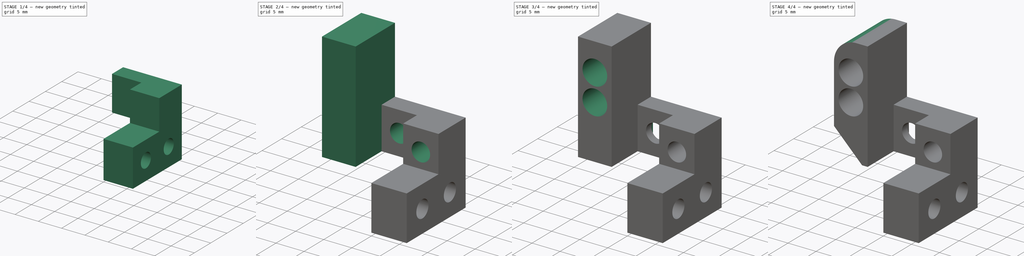
[diagram: build sequence overview — one tinted view per stage of 4, left to right]
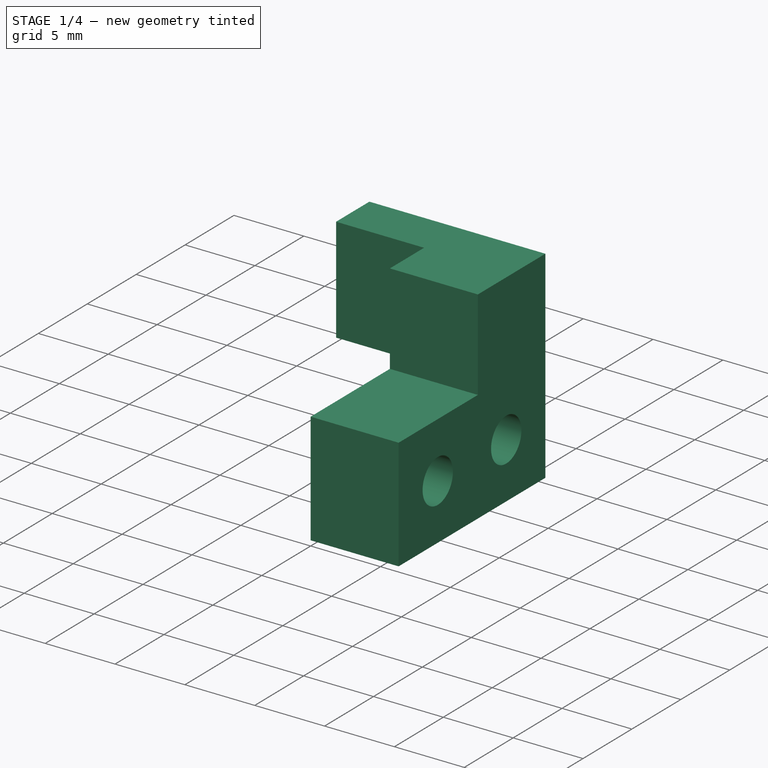
[diagram: stage 1 of 4 — iso view after this stage's code; geometry added in this stage tinted green]
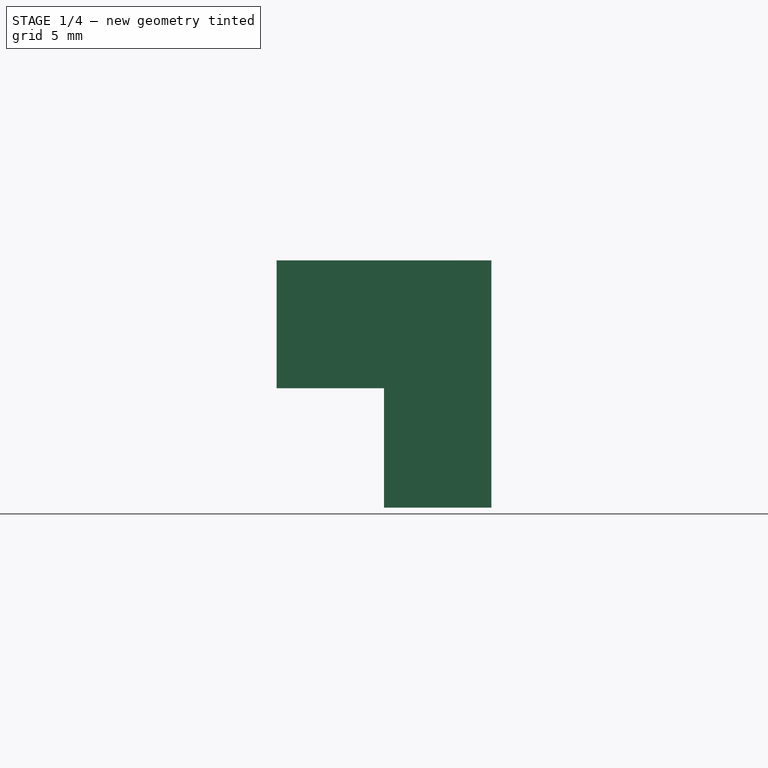
[diagram: stage 1 of 4 — front view after this stage's code; geometry added in this stage tinted green]
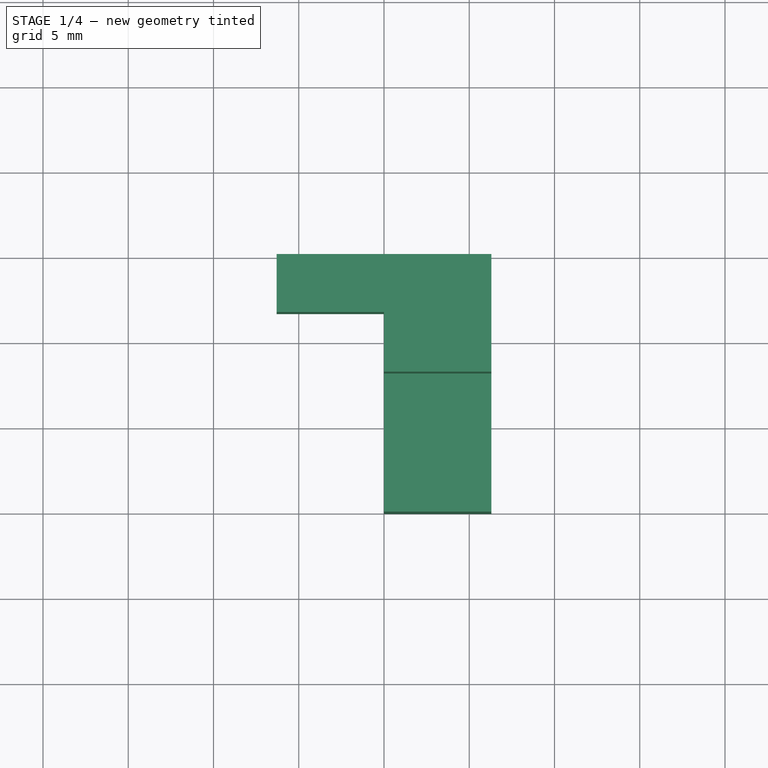
[diagram: stage 1 of 4 — top view after this stage's code; geometry added in this stage tinted green]
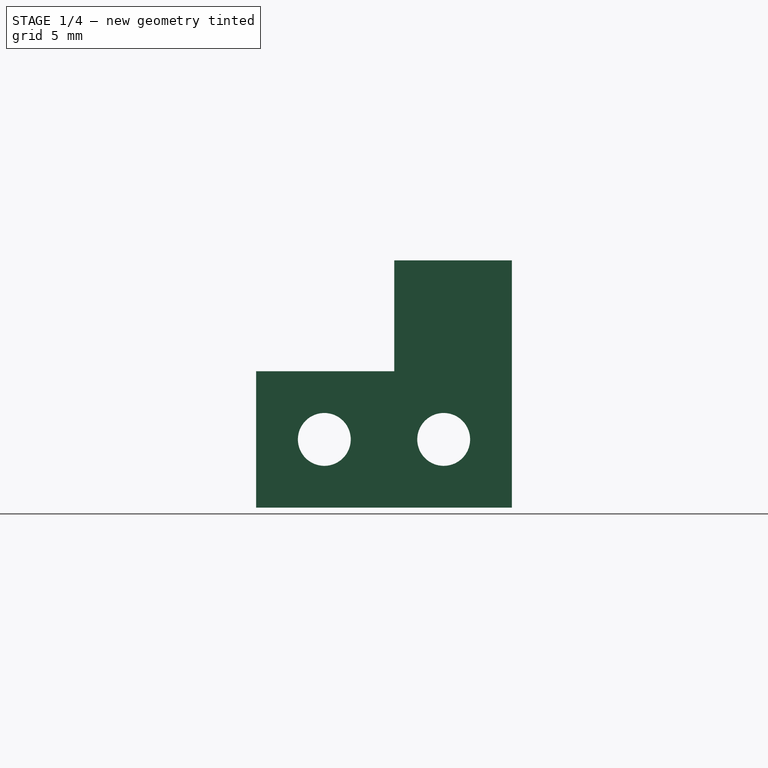
[diagram: stage 1 of 4 — right view after this stage's code; geometry added in this stage tinted green]
FCSTD DOCUMENT  (FreeCAD 0.19R24291 (Git))
Label: ri_sensor-support01
License: All rights reserved
LicenseURL: http://en.wikipedia.org/wiki/All_rights_reserved
objects: Sketcher::SketchObject×8, PartDesign::Pocket×5, PartDesign::Pad×3, PartDesign::Fillet×1, PartDesign::Chamfer×1, PartDesign::Body×1, App::Part×1
note: 29 computed .brp shape members not serialized (recipe doc carries the construction recipe); baked Part::Feature solids carry a one-line shape summary decoded from their .brp

FEATURE [Sketcher::SketchObject] Sketch  label="Baseplate-Sensor1"
  FullyConstrained = true
  MapMode = 5
  Placement = pos=(0,0,0) rot=(0.57735,0.57735,0.57735;2.0944rad)
  Support = -> [YZ_Plane001]
  expr: Constraints[12] = 10 - 3.1
  sketch-geometry (11):
    g0: LineSegment StartX=-6.9 StartY=-4.5 StartZ=0 EndX=0 EndY=-4.5 EndZ=0
    g1: LineSegment StartX=0 StartY=-4.5 StartZ=0 EndX=0 EndY=-19 EndZ=0
    g2: LineSegment StartX=0 StartY=-19 StartZ=0 EndX=-15 EndY=-19 EndZ=0
    g3: LineSegment StartX=-15 StartY=-19 StartZ=0 EndX=-15 EndY=-11 EndZ=0
    g4: LineSegment StartX=-15 StartY=-11 StartZ=0 EndX=-6.9 EndY=-11 EndZ=0
    g5: LineSegment StartX=-6.9 StartY=-11 StartZ=0 EndX=-6.9 EndY=-4.5 EndZ=0
    g6: Circle CenterX=-11 CenterY=-15 CenterZ=0 NormalX=0 NormalY=0 NormalZ=1 AngleXU=0 Radius=1.55
    g7: Circle CenterX=-4 CenterY=-15 CenterZ=0 NormalX=0 NormalY=0 NormalZ=1 AngleXU=0 Radius=1.55
    g8: GeomPoint X=-7.5 Y=-15 Z=0
    g9: GeomPoint X=-15 Y=-15 Z=0
    g10: GeomPoint X=-7.5 Y=-19 Z=0
  constraints (27):
    c: Horizontal(g0)
    c: Coincident(g0,g1)
    c: Vertical(g1)
    c: Coincident(g1,g2)
    c: Horizontal(g2)
    c: Coincident(g2,g3)
    c: Vertical(g3)
    c: Coincident(g3,g4)
    c: Coincident(g4,g5)
    c: Coincident(g5,g0)
    c: Vertical(g5)
    c: Horizontal(g4)
    c: DistanceX(g0,g0) = 6.9
    c: DistanceX(g2,g2) = 15
    c: DistanceY(g5,g5) = 6.5
    c: DistanceY(g3,g3) = 8
    c: Equal(g6,g7)
    c: Diameter(g7) = 3.1
    c: DistanceX(g6,g7) = 7
    c: Symmetric(g6,g7,g8)
    c: Symmetric(g3,g2,g9)
    c: Symmetric(g2,g1,g10)
    c: Horizontal(g6,g7)
    c: Horizontal(g8,g9)
    c: Vertical(g8,g10)
    c: DistanceY(g8,g-1) = 15
    c: Vertical(g0,g-1)
FEATURE [PartDesign::Pad] Pad
  Direction = (1,1,1)
  Length = 6.3
  Length2 = 100
  Placement = pos=(0,0,0) rot=(0.57735,0.57735,0.57735;2.0944rad)
  Profile = -> Sketch
  Refine = true
  Type = 0
FEATURE [Sketcher::SketchObject] Sketch001  label="Sensor2"
  ExternalGeometry = -> [Pad]
  FullyConstrained = false
  MapMode = 5
  Placement = pos=(4.3e-15,0,0) rot=(0.57735,0.57735,-0.57735;4.18879rad)
  Support = -> [Pad]
  sketch-geometry (4):
    g0: LineSegment StartX=-9e-16 StartY=4.5 StartZ=0 EndX=-3.4 EndY=4.5 EndZ=0
    g1: LineSegment StartX=-3.4 StartY=4.5 StartZ=0 EndX=-3.4 EndY=12 EndZ=0
    g2: LineSegment StartX=-3.4 StartY=12 StartZ=0 EndX=-9e-16 EndY=12 EndZ=0
    g3: LineSegment StartX=-9e-16 StartY=12 StartZ=0 EndX=-9e-16 EndY=4.5 EndZ=0
  constraints (10):
    c: Coincident(g0,g1)
    c: Coincident(g1,g2)
    c: Coincident(g2,g3)
    c: Coincident(g3,g0)
    c: Horizontal(g0)
    c: Vertical(g1)
    c: Vertical(g3)
    c: Coincident(g0,g-4)
    c: DistanceY(g3,g3) = 7.5
    c: Horizontal(g2)
FEATURE [PartDesign::Pad] Pad001
  BaseFeature = -> Pad
  Direction = (1,1,1)
  Length = 6.3
  Length2 = 100
  Placement = pos=(0,0,0) rot=(0.57735,0.57735,0.57735;2.0944rad)
  Profile = -> Sketch001
  Refine = true
  Type = 0
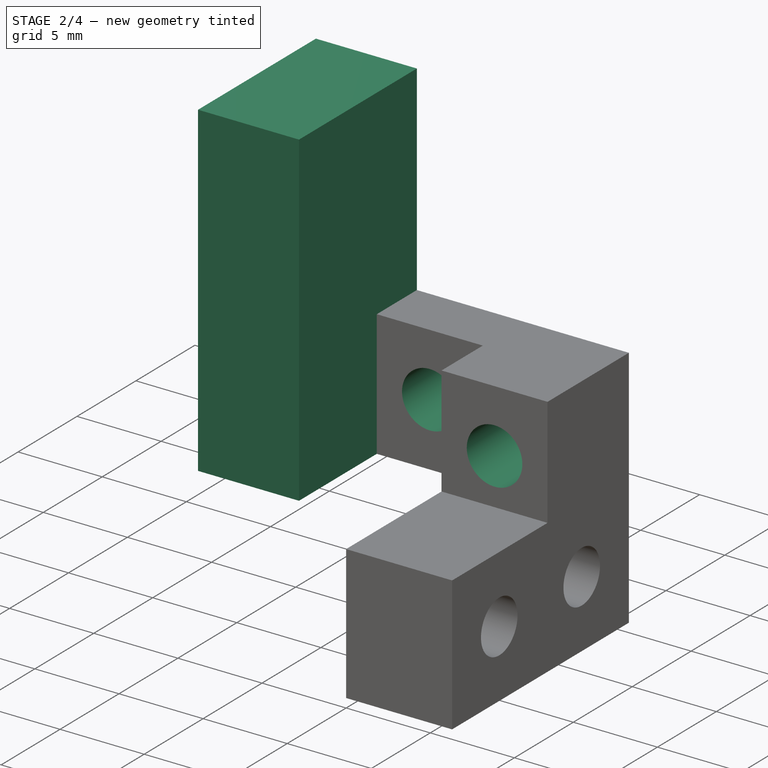
[diagram: stage 2 of 4 — iso view after this stage's code; geometry added in this stage tinted green]
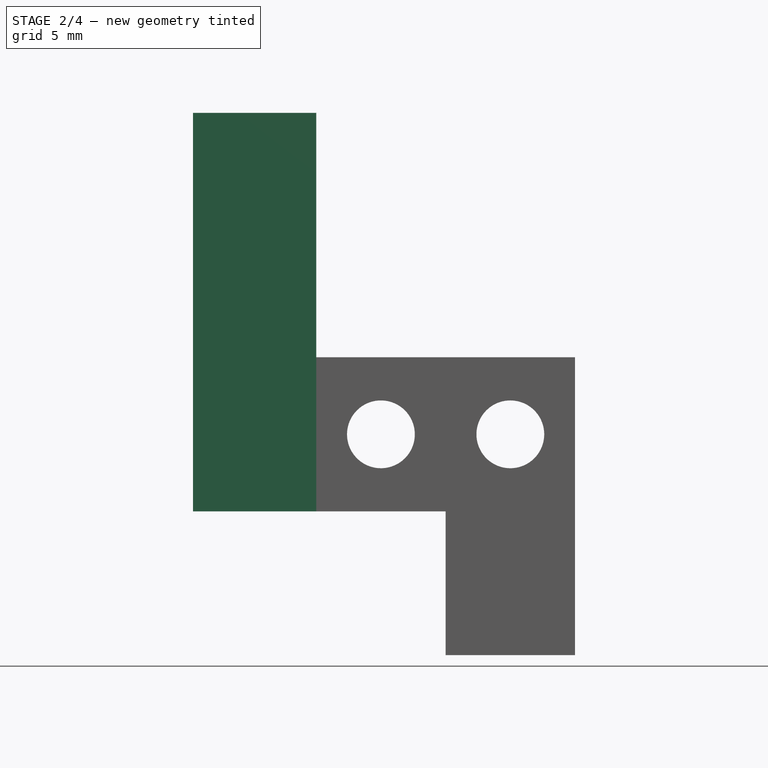
[diagram: stage 2 of 4 — front view after this stage's code; geometry added in this stage tinted green]
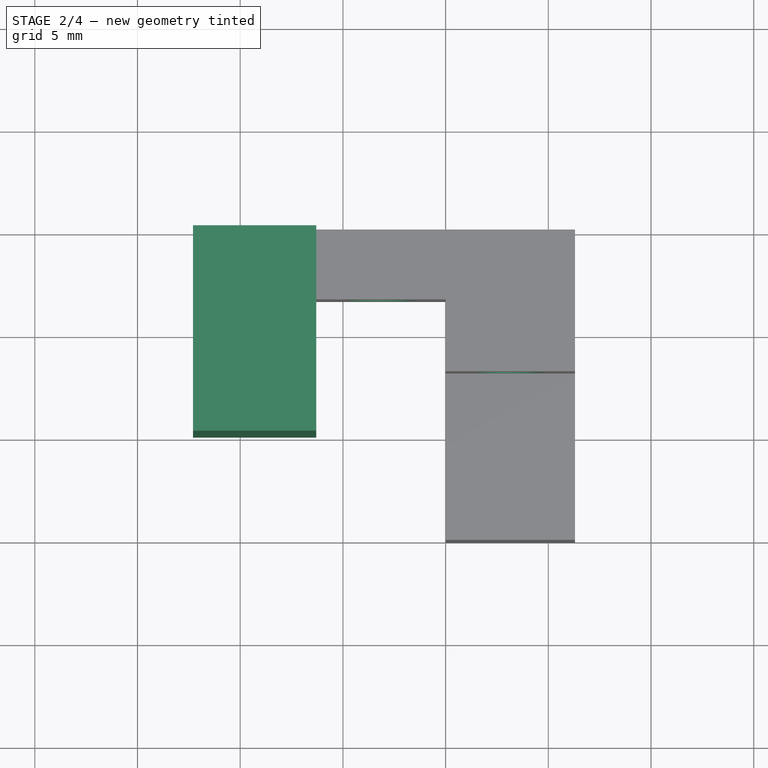
[diagram: stage 2 of 4 — top view after this stage's code; geometry added in this stage tinted green]
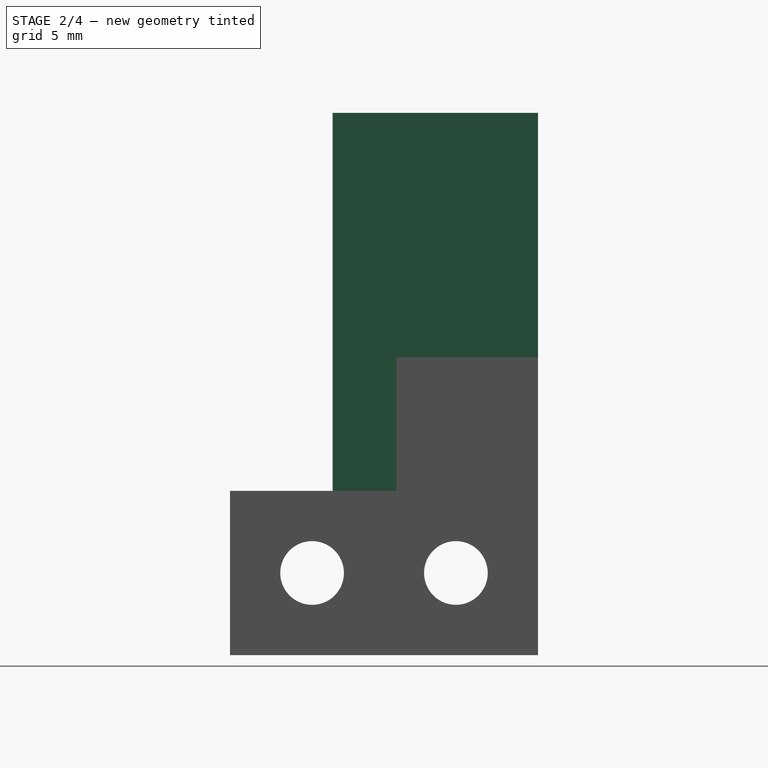
[diagram: stage 2 of 4 — right view after this stage's code; geometry added in this stage tinted green]
FEATURE [Sketcher::SketchObject] Sketch002  label="Tubeholder"
  ExternalGeometry = -> [Pad001]
  FullyConstrained = true
  MapMode = 5
  Placement = pos=(-6.3,4.2e-15,-3.5e-15) rot=(0.57735,0.57735,-0.57735;4.18879rad)
  Support = -> [Pad001]
  sketch-geometry (4):
    g0: LineSegment StartX=-1.8e-15 StartY=12 StartZ=0 EndX=-10 EndY=12 EndZ=0
    g1: LineSegment StartX=-10 StartY=12 StartZ=0 EndX=-10 EndY=-7.4 EndZ=0
    g2: LineSegment StartX=-10 StartY=-7.4 StartZ=0 EndX=-1.8e-15 EndY=-7.4 EndZ=0
    g3: LineSegment StartX=-1.8e-15 StartY=-7.4 StartZ=0 EndX=-1.8e-15 EndY=12 EndZ=0
  constraints (11):
    c: Coincident(g0,g1)
    c: Coincident(g1,g2)
    c: Coincident(g2,g3)
    c: Coincident(g3,g0)
    c: Horizontal(g0)
    c: Horizontal(g2)
    c: Vertical(g1)
    c: Vertical(g3)
    c: Coincident(g0,g-3)
    c: DistanceY(g1,g-4) = 11.9
    c: DistanceX(g2,g2) = 10
FEATURE [PartDesign::Pad] Pad002
  BaseFeature = -> Pad001
  Direction = (1,1,1)
  Length = 6
  Length2 = 100
  Placement = pos=(0,0,0) rot=(0.57735,0.57735,0.57735;2.0944rad)
  Profile = -> Sketch002
  Refine = true
  Type = 0
FEATURE [Sketcher::SketchObject] Sketch003  label="Hole_Sensor1"
  ExternalGeometry = -> [Pad002]
  FullyConstrained = true
  MapMode = 5
  Placement = pos=(-3.1e-15,-6.9,6.9e-15) rot=(0.57735,0.57735,-0.57735;2.0944rad)
  Support = -> [Pad002]
  expr: Constraints[2] = (24.5 - 19) / 2
  sketch-geometry (2):
    g0: Circle CenterX=8.25 CenterY=3.15 CenterZ=0 NormalX=0 NormalY=0 NormalZ=1 AngleXU=0 Radius=1.65
    g1: GeomPoint X=11 Y=3.15 Z=0
  constraints (4):
    c: Diameter(g0) = 3.3
    c: Symmetric(g-3,g-3,g1)
    c: DistanceX(g0,g1) = 2.75
    c: Horizontal(g0,g1)
FEATURE [PartDesign::Pocket] Pocket
  BaseFeature = -> Pad002
  Length = 5
  Length2 = 100
  Placement = pos=(0,0,0) rot=(0.57735,0.57735,0.57735;2.0944rad)
  Profile = -> Sketch003
  Refine = true
  Type = 1
FEATURE [Sketcher::SketchObject] Sketch004  label="Hole_Sensor2"
  ExternalGeometry = -> [Pocket]
  FullyConstrained = true
  MapMode = 5
  Placement = pos=(-2.3e-15,-3.4,2.6e-15) rot=(0.57735,0.57735,-0.57735;2.0944rad)
  Support = -> [Pocket]
  sketch-geometry (2):
    g0: GeomPoint X=12 Y=-3.15 Z=0
    g1: Circle CenterX=8.25 CenterY=-3.15 CenterZ=0 NormalX=0 NormalY=0 NormalZ=1 AngleXU=0 Radius=1.65
  constraints (4):
    c: Equal(g1,g-4)
    c: Symmetric(g-3,g-3,g0)
    c: Vertical(g1,g-4)
    c: Horizontal(g1,g0)
FEATURE [PartDesign::Pocket] Pocket001
  BaseFeature = -> Pocket
  Length = 5
  Length2 = 100
  Placement = pos=(0,0,0) rot=(0.57735,0.57735,0.57735;2.0944rad)
  Profile = -> Sketch004
  Refine = true
  Type = 1
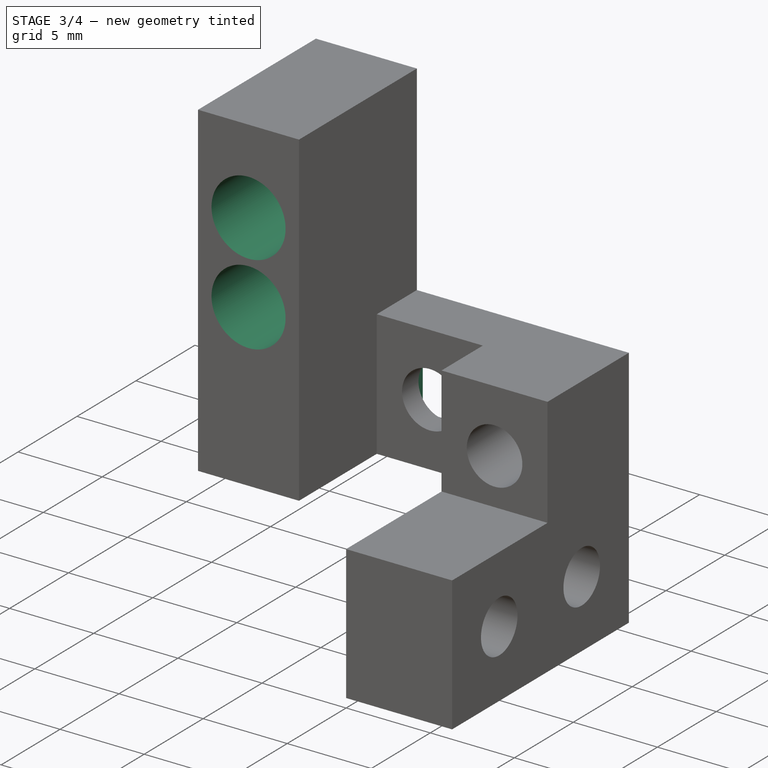
[diagram: stage 3 of 4 — iso view after this stage's code; geometry added in this stage tinted green]
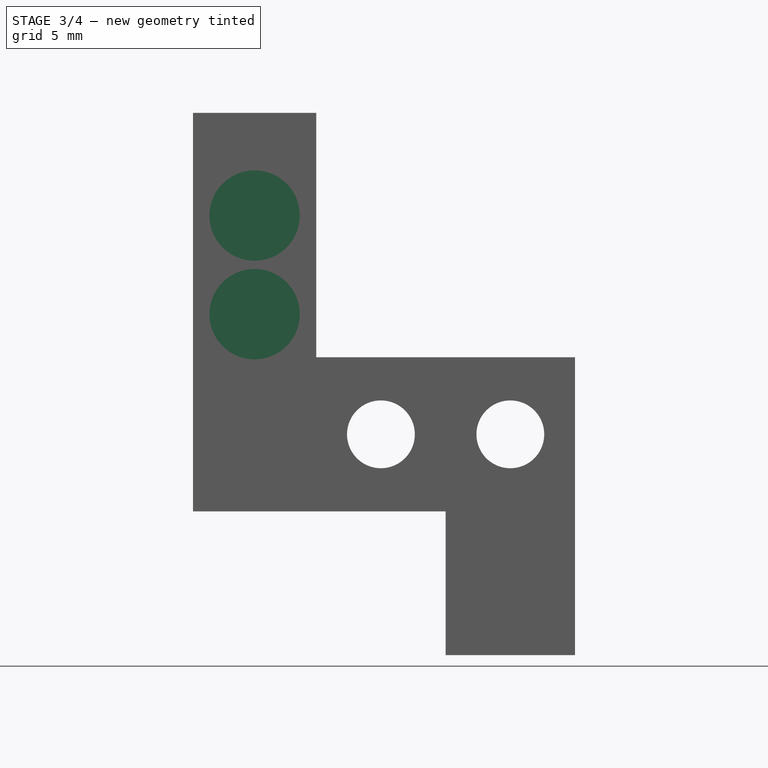
[diagram: stage 3 of 4 — front view after this stage's code; geometry added in this stage tinted green]
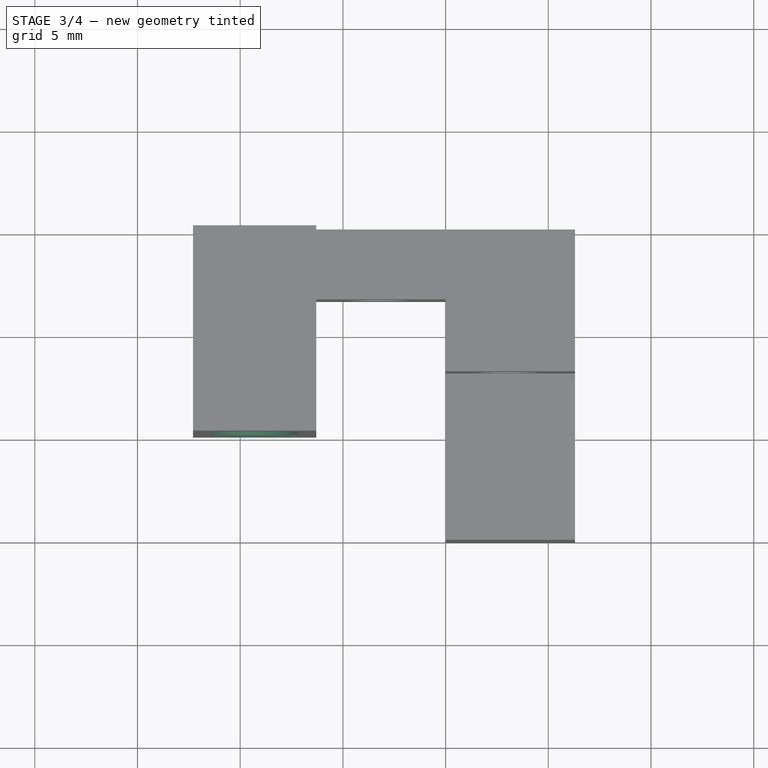
[diagram: stage 3 of 4 — top view after this stage's code; geometry added in this stage tinted green]
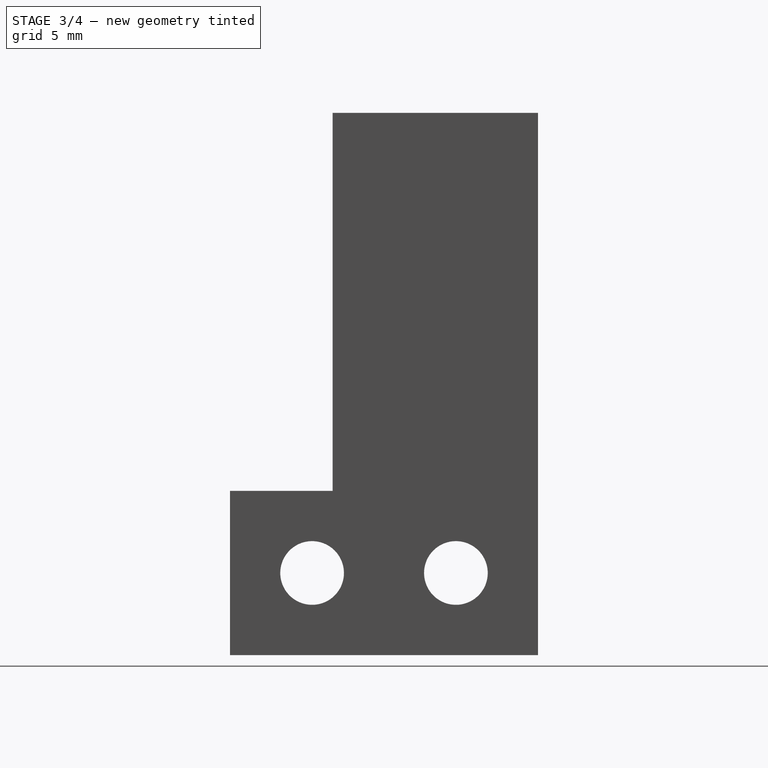
[diagram: stage 3 of 4 — right view after this stage's code; geometry added in this stage tinted green]
FEATURE [Sketcher::SketchObject] Sketch005  label="Hole_Rollers"
  ExternalGeometry = -> [Pocket001]
  FullyConstrained = true
  MapMode = 5
  Placement = pos=(-8.9e-15,-10,7.8e-15) rot=(-0.57735,-0.57735,0.57735;4.18879rad)
  Support = -> [Pocket001]
  sketch-geometry (4):
    g0: Circle CenterX=-2.4 CenterY=-9.3 CenterZ=0 NormalX=0 NormalY=0 NormalZ=1 AngleXU=0 Radius=2.2
    g1: Circle CenterX=2.4 CenterY=-9.3 CenterZ=0 NormalX=0 NormalY=0 NormalZ=1 AngleXU=0 Radius=2.2
    g2: GeomPoint X=0 Y=-9.3 Z=0
    g3: GeomPoint X=-7.4 Y=-9.3 Z=0
  constraints (8):
    c: Equal(g0,g1)
    c: Diameter(g0) = 4.4
    c: Horizontal(g0,g1)
    c: Symmetric(g0,g1,g2)
    c: DistanceX(g0,g1) = 4.8
    c: Vertical(g2,g-1)
    c: Symmetric(g-3,g-3,g3)
    c: Horizontal(g3,g2)
FEATURE [PartDesign::Pocket] Pocket002
  BaseFeature = -> Pocket001
  Length = 5
  Length2 = 100
  Placement = pos=(0,0,0) rot=(0.57735,0.57735,0.57735;2.0944rad)
  Profile = -> Sketch005
  Refine = true
  Type = 0
FEATURE [Sketcher::SketchObject] Sketch006  label="Baseplate-Nuts"
  ExternalGeometry = -> [Pocket002]
  FullyConstrained = true
  MapMode = 5
  Placement = pos=(2.56e-14,0,0) rot=(-0.57735,-0.57735,0.57735;2.0944rad)
  Support = -> [Pocket002]
  sketch-geometry (8):
    g0: LineSegment StartX=-1.2 StartY=12.2 StartZ=0 EndX=-6.8 EndY=12.2 EndZ=0
    g1: LineSegment StartX=-6.8 StartY=12.2 StartZ=0 EndX=-6.8 EndY=17.8 EndZ=0
    g2: LineSegment StartX=-6.8 StartY=17.8 StartZ=0 EndX=-1.2 EndY=17.8 EndZ=0
    g3: LineSegment StartX=-1.2 StartY=17.8 StartZ=0 EndX=-1.2 EndY=12.2 EndZ=0
    g4: LineSegment StartX=-8.2 StartY=12.2 StartZ=0 EndX=-13.8 EndY=12.2 EndZ=0
    g5: LineSegment StartX=-13.8 StartY=12.2 StartZ=0 EndX=-13.8 EndY=17.8 EndZ=0
    g6: LineSegment StartX=-13.8 StartY=17.8 StartZ=0 EndX=-8.2 EndY=17.8 EndZ=0
    g7: LineSegment StartX=-8.2 StartY=17.8 StartZ=0 EndX=-8.2 EndY=12.2 EndZ=0
  constraints (22):
    c: Coincident(g0,g1)
    c: Coincident(g1,g2)
    c: Coincident(g2,g3)
    c: Coincident(g3,g0)
    c: Horizontal(g0)
    c: Horizontal(g2)
    c: Vertical(g1)
    c: Vertical(g3)
    c: Coincident(g4,g5)
    c: Coincident(g5,g6)
    c: Coincident(g6,g7)
    c: Coincident(g7,g4)
    c: Horizontal(g4)
    c: Horizontal(g6)
    c: Vertical(g5)
    c: Vertical(g7)
    c: Equal(g0,g3)
    c: Equal(g4,g7)
    c: Equal(g4,g0)
    c: DistanceX(g6,g6) = 5.6
    c: Symmetric(g0,g1,g-3)
    c: Symmetric(g4,g5,g-4)
FEATURE [PartDesign::Pocket] Pocket003
  BaseFeature = -> Pocket002
  Length = 2
  Length2 = 100
  Placement = pos=(0,0,0) rot=(0.57735,0.57735,0.57735;2.0944rad)
  Profile = -> Sketch006
  Refine = true
  Type = 0
FEATURE [Sketcher::SketchObject] Sketch007  label="Sensors-Nuts"
  ExternalGeometry = -> [Pocket003]
  FullyConstrained = true
  MapMode = 5
  Placement = pos=(0,6.4e-15,0) rot=(0.57735,0.57735,0.57735;4.18879rad)
  Support = -> [Pocket003]
  sketch-geometry (8):
    g0: LineSegment StartX=-11.05 StartY=5.95 StartZ=0 EndX=-5.45 EndY=5.95 EndZ=0
    g1: LineSegment StartX=-5.45 StartY=5.95 StartZ=0 EndX=-5.45 EndY=0.35 EndZ=0
    g2: LineSegment StartX=-5.45 StartY=0.35 StartZ=0 EndX=-11.05 EndY=0.35 EndZ=0
    g3: LineSegment StartX=-11.05 StartY=0.35 StartZ=0 EndX=-11.05 EndY=5.95 EndZ=0
    g4: LineSegment StartX=-11.05 StartY=-0.35 StartZ=0 EndX=-5.45 EndY=-0.35 EndZ=0
    g5: LineSegment StartX=-5.45 StartY=-0.35 StartZ=0 EndX=-5.45 EndY=-5.95 EndZ=0
    g6: LineSegment StartX=-5.45 StartY=-5.95 StartZ=0 EndX=-11.05 EndY=-5.95 EndZ=0
    g7: LineSegment StartX=-11.05 StartY=-5.95 StartZ=0 EndX=-11.05 EndY=-0.35 EndZ=0
  constraints (22):
    c: Coincident(g0,g1)
    c: Coincident(g1,g2)
    c: Coincident(g2,g3)
    c: Coincident(g3,g0)
    c: Horizontal(g0)
    c: Horizontal(g2)
    c: Vertical(g1)
    c: Vertical(g3)
    c: Coincident(g4,g5)
    c: Coincident(g5,g6)
    c: Coincident(g6,g7)
    c: Coincident(g7,g4)
    c: Horizontal(g4)
    c: Horizontal(g6)
    c: Vertical(g5)
    c: Vertical(g7)
    c: Equal(g0,g1)
    c: Equal(g4,g5)
    c: Equal(g5,g1)
    c: DistanceX(g0,g0) = 5.6
    c: Symmetric(g2,g0,g-3)
    c: Symmetric(g6,g4,g-4)
FEATURE [PartDesign::Pocket] Pocket004
  BaseFeature = -> Pocket003
  Length = 2
  Length2 = 100
  Placement = pos=(0,0,0) rot=(0.57735,0.57735,0.57735;2.0944rad)
  Profile = -> Sketch007
  Refine = true
  Type = 0
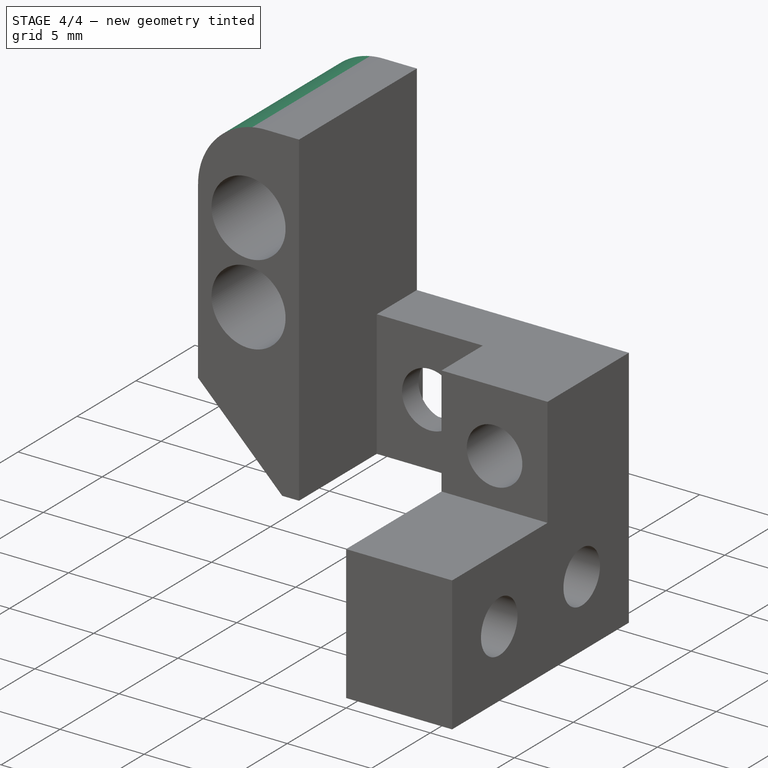
[diagram: stage 4 of 4 — iso view after this stage's code; geometry added in this stage tinted green]
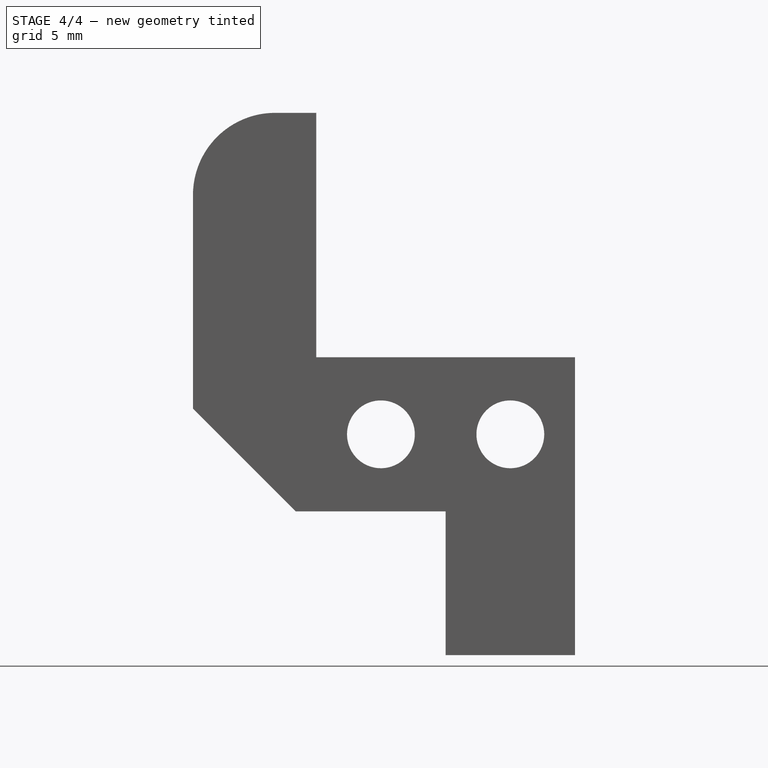
[diagram: stage 4 of 4 — front view after this stage's code; geometry added in this stage tinted green]
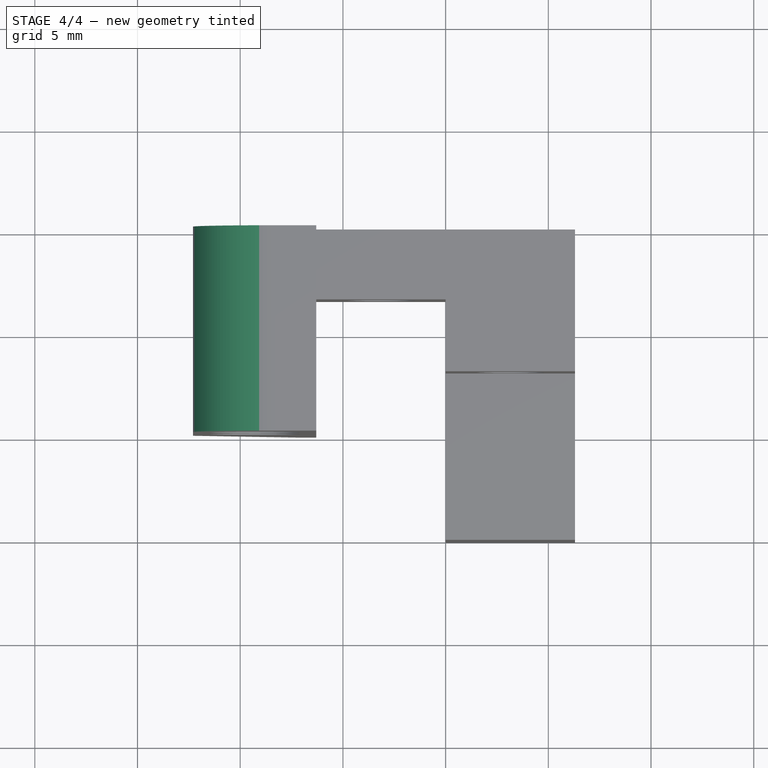
[diagram: stage 4 of 4 — top view after this stage's code; geometry added in this stage tinted green]
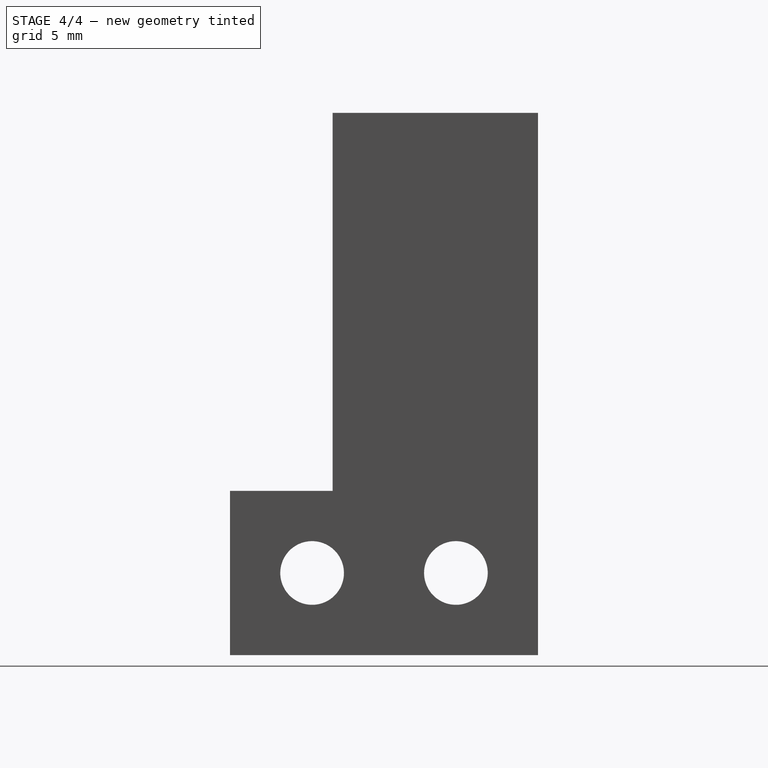
[diagram: stage 4 of 4 — right view after this stage's code; geometry added in this stage tinted green]
FEATURE [PartDesign::Fillet] Fillet
  Base = -> Pocket004 [Edge86]
  BaseFeature = -> Pocket004
  Placement = pos=(0,0,0) rot=(0.57735,0.57735,0.57735;2.0944rad)
  Radius = 4
  Refine = true
  SupportTransform = false
FEATURE [PartDesign::Chamfer] Chamfer
  Angle = 45
  Base = -> Fillet [Edge28]
  BaseFeature = -> Fillet
  ChamferType = 0
  FlipDirection = false
  Placement = pos=(0,0,0) rot=(0.57735,0.57735,0.57735;2.0944rad)
  Refine = true
  Size = 5
  Size2 = 1
  SupportTransform = false
FEATURE [PartDesign::Body] Body
  Group = -> [Sketch,Pad,Sketch001,Pad001,Sketch002,Pad002,Sketch003,Pocket,Sketch004,Pocket001,Sketch005,Pocket002,Sketch006,Pocket003,Sketch007,Pocket004,Fillet,Chamfer]
  Origin = -> Origin001
  Tip = -> Chamfer
FEATURE [App::Part] Part
  Group = -> [Body]
  Origin = -> Origin
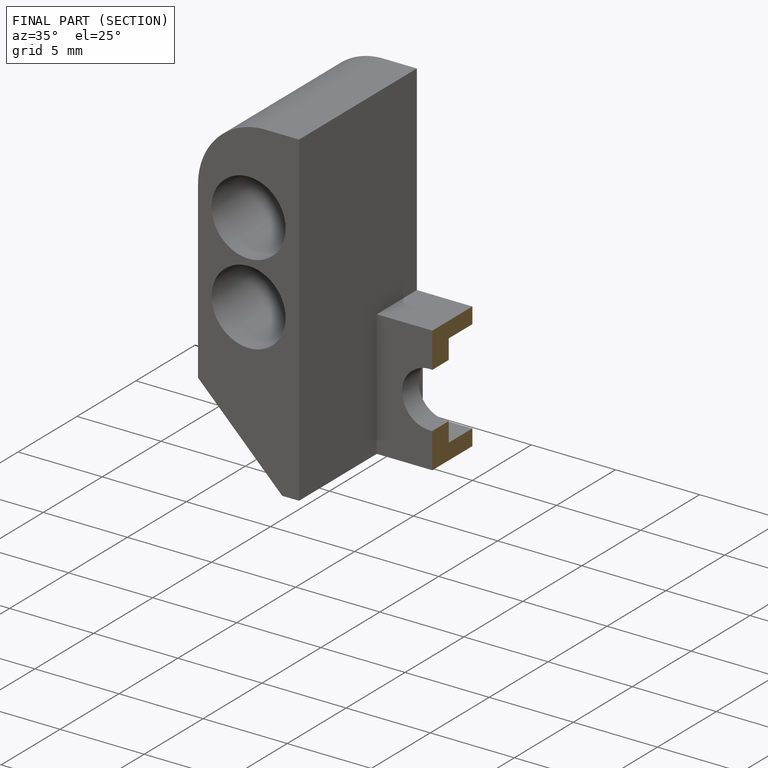
[diagram: finished part — half-section view (interior)]
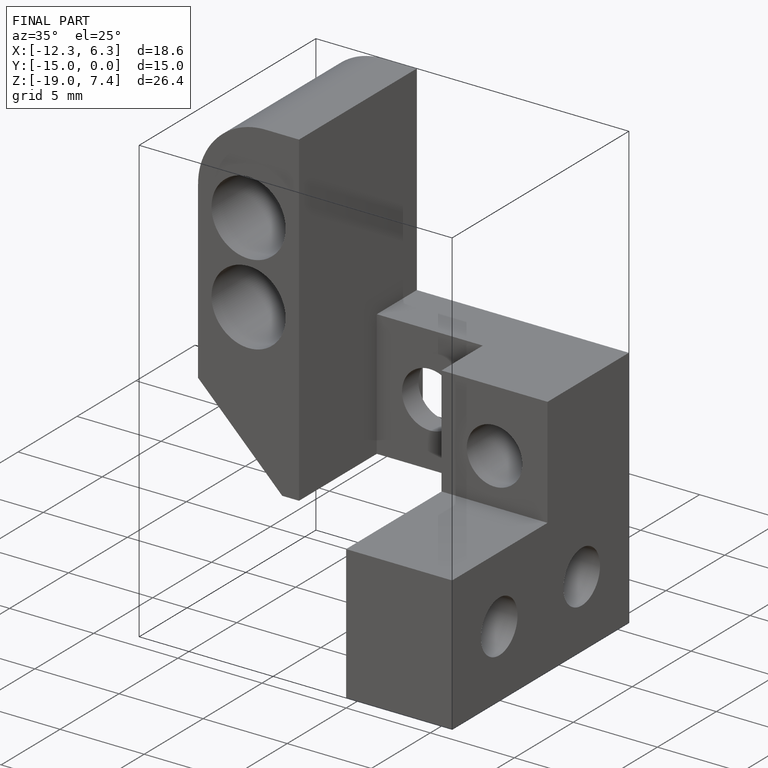
[diagram: finished part — iso view with bounding-box wireframe]
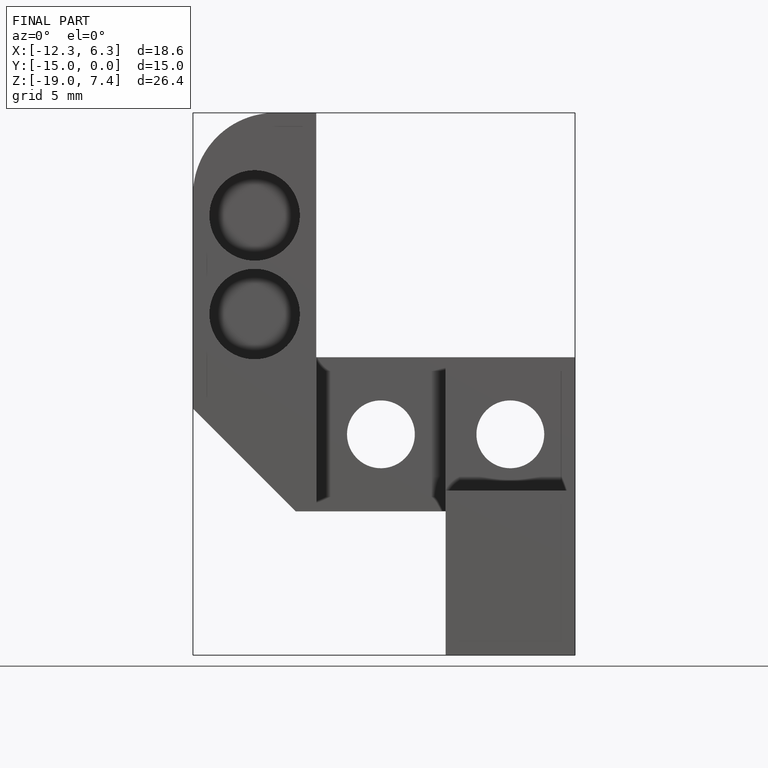
[diagram: finished part — front view with bounding-box wireframe]
